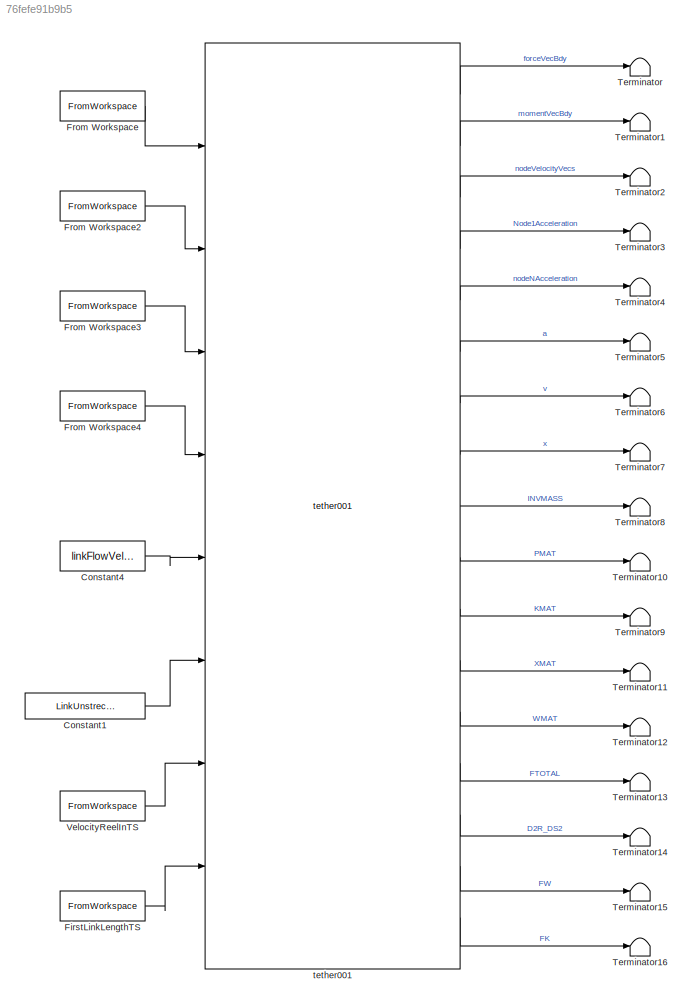
MODEL slx_76fefe91b9b5
KIND model
CONFIG AbsTol = auto
CONFIG EnableMultiTasking = off
CONFIG FixedStep = auto
CONFIG MaxStep = auto
CONFIG MinStep = auto
CONFIG RelTol = 1e-3
CONFIG SampleTimeConstraint = Unconstrained
CONFIG Solver = VariableStepAuto
CONFIG SolverName = VariableStepAuto
CONFIG StartTime = 0.0
CONFIG StopTime = simTime
BLOCK [Constant] Constant1
  Value = LinkUnstrechedLengths
BLOCK [Constant] Constant4
  Value = linkFlowVelVecs
BLOCK [FromWorkspace] FirstLinkLengthTS
  VariableName = FirstLinkLengthTS
BLOCK [FromWorkspace] From Workspace
  VariableName = gndNodePosTS
BLOCK [FromWorkspace] From Workspace2
  VariableName = gndNodeVelTS
BLOCK [FromWorkspace] From Workspace3
  VariableName = airNodePosTS
BLOCK [FromWorkspace] From Workspace4
  VariableName = airNodeVelTS
BLOCK [Terminator] Terminator
BLOCK [Terminator] Terminator1
BLOCK [Terminator] Terminator10
BLOCK [Terminator] Terminator11
BLOCK [Terminator] Terminator12
BLOCK [Terminator] Terminator13
BLOCK [Terminator] Terminator14
BLOCK [Terminator] Terminator15
BLOCK [Terminator] Terminator16
BLOCK [Terminator] Terminator2
BLOCK [Terminator] Terminator3
BLOCK [Terminator] Terminator4
BLOCK [Terminator] Terminator5
BLOCK [Terminator] Terminator6
BLOCK [Terminator] Terminator7
BLOCK [Terminator] Terminator8
BLOCK [Terminator] Terminator9
BLOCK [FromWorkspace] VelocityReelInTS
  VariableName = VelocityReelInTS
BLOCK [Reference] tether001  REF=tether001_ul/tether001  (lib defined in slx_86813832346c)
  Ports = [8, 17]
  SourceBlock = tether001_ul/tether001
  SourceType = SubSystem
LINE Constant1:1 -> tether001:6
LINE Constant4:1 -> tether001:5
LINE FirstLinkLengthTS:1 -> tether001:8
LINE From Workspace2:1 -> tether001:2
LINE From Workspace3:1 -> tether001:3
LINE From Workspace4:1 -> tether001:4
LINE From Workspace:1 -> tether001:1
LINE VelocityReelInTS:1 -> tether001:7
LINE tether001:1 -> Terminator:1
LINE tether001:10 -> Terminator10:1
LINE tether001:11 -> Terminator9:1
LINE tether001:12 -> Terminator11:1
LINE tether001:13 -> Terminator12:1
LINE tether001:14 -> Terminator13:1
LINE tether001:15 -> Terminator14:1
LINE tether001:16 -> Terminator15:1
LINE tether001:17 -> Terminator16:1
LINE tether001:2 -> Terminator1:1
LINE tether001:3 -> Terminator2:1
LINE tether001:4 -> Terminator3:1
LINE tether001:5 -> Terminator4:1
LINE tether001:6 -> Terminator5:1
LINE tether001:7 -> Terminator6:1
LINE tether001:8 -> Terminator7:1
LINE tether001:9 -> Terminator8:1
